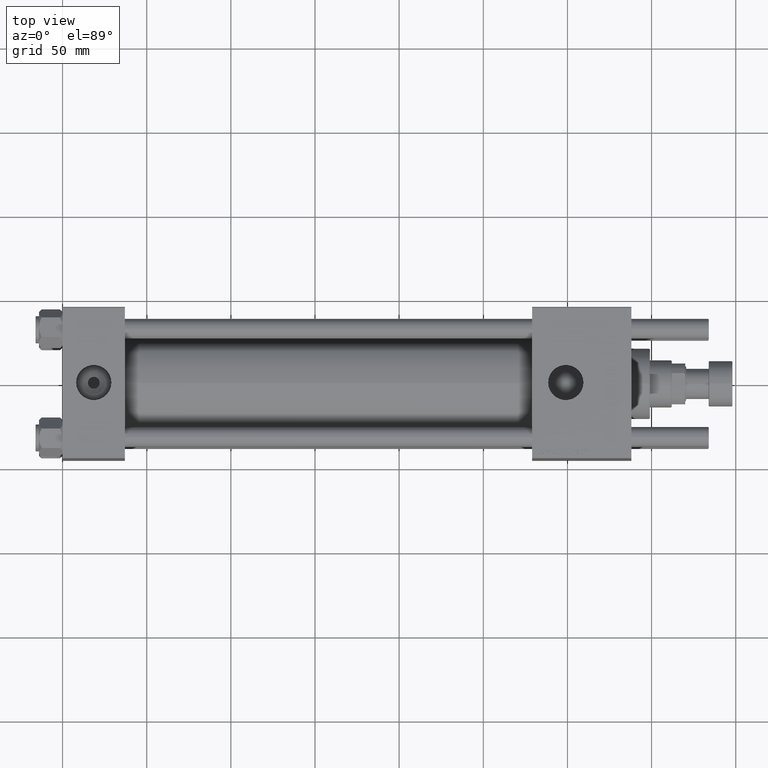
[diagram: clean part render]
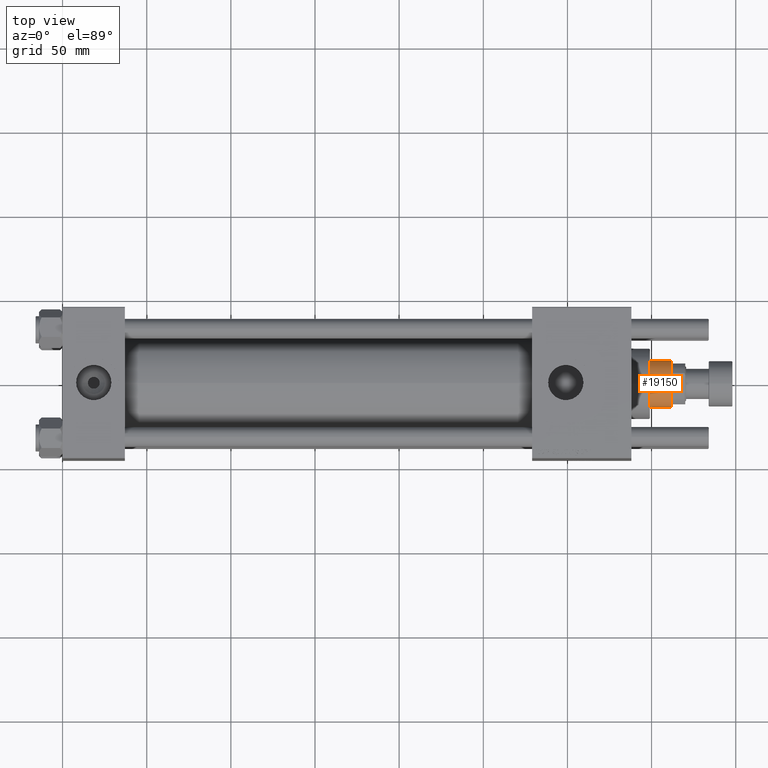
[diagram: same view with one face highlighted and labeled with its STEP entity id]
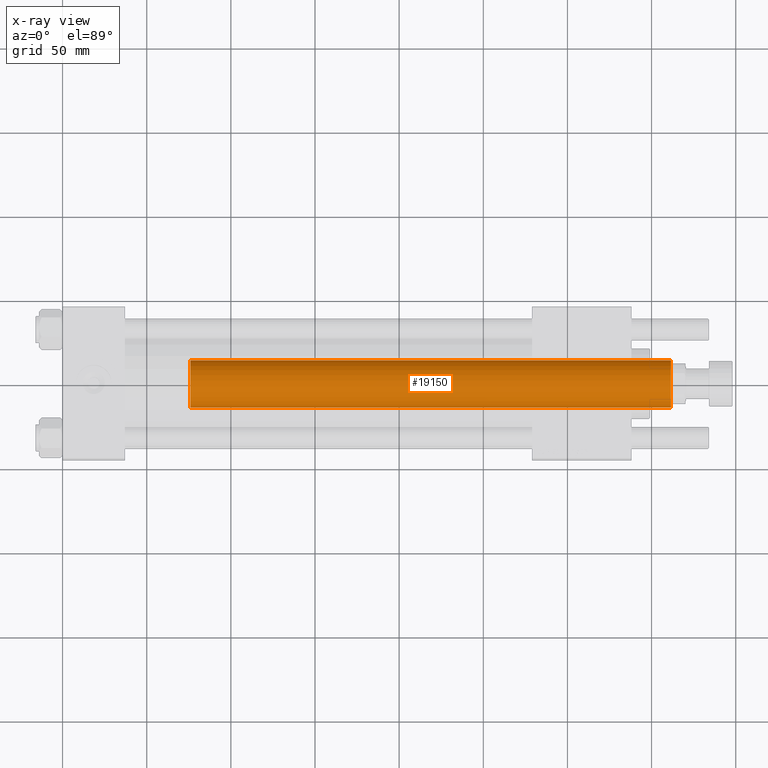
[diagram: x-ray of the same camera — body ghosted, the highlighted face saturated]
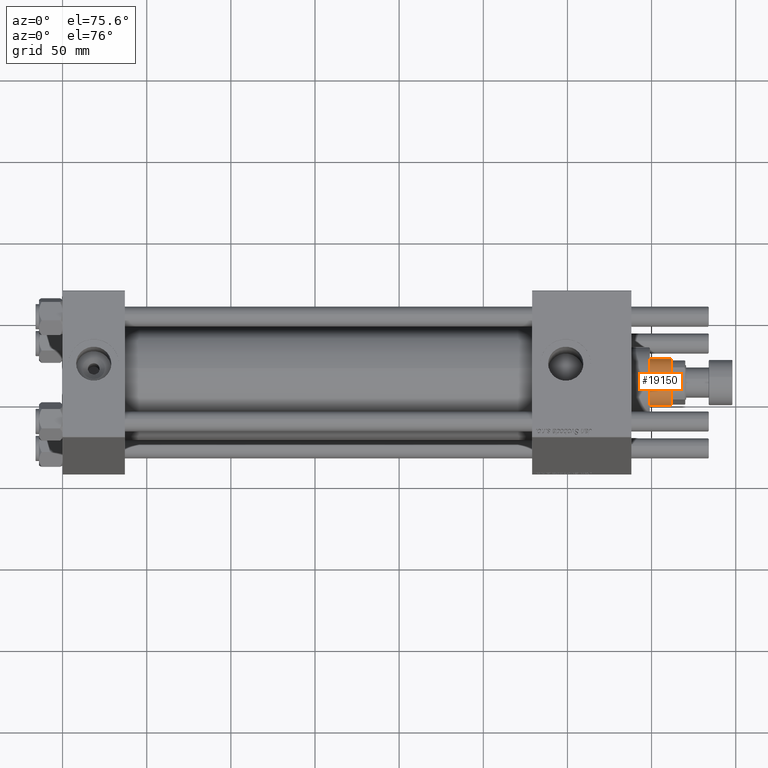
[diagram: same view with one face highlighted and labeled with its STEP entity id]
A machine part, top view. The second image highlights one B-rep face of the part: STEP entity #19150.
The next image is the same camera in x-ray: the body ghosted, the highlighted face saturated — about 0% of this face is hidden behind the body in this view.
A second angle (auxiliary view) of the same face is appended — the face is thin or edge-on in the first view.
In plain terms, the highlighted cylindrical surface (edge-blend (fillet) strip) has radius 14 mm, axis along (-1, 0, 0).
Its self-contained STEP definition (entity closure, byte-faithful):
#1366 = AXIS2_PLACEMENT_3D ( 'NONE', #35163, #58512, #48038 ) ;
#3121 = VECTOR ( 'NONE', #55521, 1000.000000000000000 ) ;
#5680 = CARTESIAN_POINT ( 'NONE',  ( 14.00000000000000178, 1.714505518806294835E-15, 324.4999999999999432 ) ) ;
#5947 = ORIENTED_EDGE ( 'NONE', *, *, #58931, .T. ) ;
#6996 = DIRECTION ( 'NONE',  ( -0.000000000000000000, -0.000000000000000000, -1.000000000000000000 ) ) ;
#7440 = VERTEX_POINT ( 'NONE', #17053 ) ;
#9094 = CARTESIAN_POINT ( 'NONE',  ( 14.00000000000000178, 1.714505518806294835E-15, 324.9999999999999432 ) ) ;
#11344 = VERTEX_POINT ( 'NONE', #49720 ) ;
#13832 = CIRCLE ( 'NONE', #1366, 14.00000000000000178 ) ;
#14177 = DIRECTION ( 'NONE',  ( -0.000000000000000000, -0.000000000000000000, -1.000000000000000000 ) ) ;
#14371 = ORIENTED_EDGE ( 'NONE', *, *, #27931, .F. ) ;
#14401 = AXIS2_PLACEMENT_3D ( 'NONE', #16583, #6996, #43567 ) ;
#14473 = LINE ( 'NONE', #37266, #3121 ) ;
#15797 = CARTESIAN_POINT ( 'NONE',  ( -14.00000000000000178, 0.000000000000000000, 39.00000000000000000 ) ) ;
#16583 = CARTESIAN_POINT ( 'NONE',  ( 0.000000000000000000, 0.000000000000000000, 324.9999999999999432 ) ) ;
#17053 = CARTESIAN_POINT ( 'NONE',  ( -14.00000000000000178, 0.000000000000000000, 324.4999999999999432 ) ) ;
#18620 = ORIENTED_EDGE ( 'NONE', *, *, #28819, .T. ) ;
#19150 = ADVANCED_FACE ( 'NONE', ( #47750 ), #48044, .T. ) ;
#19575 = VERTEX_POINT ( 'NONE', #5680 ) ;
#21540 = AXIS2_PLACEMENT_3D ( 'NONE', #51208, #41337, #32353 ) ;
#27931 = EDGE_CURVE ( 'NONE', #19575, #11344, #41150, .T. ) ;
#27957 = VECTOR ( 'NONE', #14177, 1000.000000000000000 ) ;
#28819 = EDGE_CURVE ( 'NONE', #7440, #55068, #14473, .T. ) ;
#32353 = DIRECTION ( 'NONE',  ( 1.000000000000000000, 0.000000000000000000, 0.000000000000000000 ) ) ;
#33904 = EDGE_CURVE ( 'NONE', #55068, #11344, #13832, .T. ) ;
#35163 = CARTESIAN_POINT ( 'NONE',  ( 0.000000000000000000, 0.000000000000000000, 39.00000000000000000 ) ) ;
#37266 = CARTESIAN_POINT ( 'NONE',  ( -14.00000000000000178, 0.000000000000000000, 324.9999999999999432 ) ) ;
#37462 = ORIENTED_EDGE ( 'NONE', *, *, #33904, .T. ) ;
#41150 = LINE ( 'NONE', #9094, #27957 ) ;
#41337 = DIRECTION ( 'NONE',  ( 0.000000000000000000, 0.000000000000000000, -1.000000000000000000 ) ) ;
#43567 = DIRECTION ( 'NONE',  ( -1.000000000000000000, 0.000000000000000000, 0.000000000000000000 ) ) ;
#47750 = FACE_OUTER_BOUND ( 'NONE', #57965, .T. ) ;
#48038 = DIRECTION ( 'NONE',  ( 1.000000000000000000, 0.000000000000000000, 0.000000000000000000 ) ) ;
#48044 = CYLINDRICAL_SURFACE ( 'NONE', #14401, 14.00000000000000178 ) ;
#49720 = CARTESIAN_POINT ( 'NONE',  ( 14.00000000000000178, 1.714505518806294835E-15, 39.00000000000000000 ) ) ;
#51208 = CARTESIAN_POINT ( 'NONE',  ( 0.000000000000000000, 0.000000000000000000, 324.4999999999999432 ) ) ;
#54065 = CIRCLE ( 'NONE', #21540, 14.00000000000000178 ) ;
#55068 = VERTEX_POINT ( 'NONE', #15797 ) ;
#55521 = DIRECTION ( 'NONE',  ( -0.000000000000000000, -0.000000000000000000, -1.000000000000000000 ) ) ;
#57965 = EDGE_LOOP ( 'NONE', ( #14371, #5947, #18620, #37462 ) ) ;
#58512 = DIRECTION ( 'NONE',  ( 0.000000000000000000, 0.000000000000000000, 1.000000000000000000 ) ) ;
#58931 = EDGE_CURVE ( 'NONE', #19575, #7440, #54065, .T. ) ;